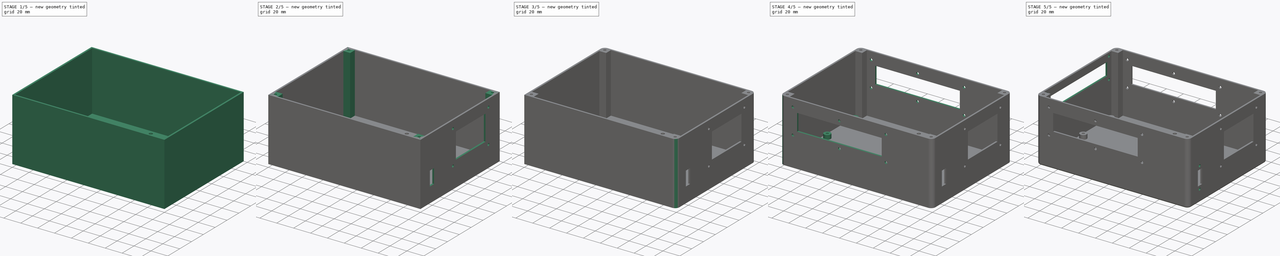
[diagram: build sequence overview — one tinted view per stage of 5, left to right]
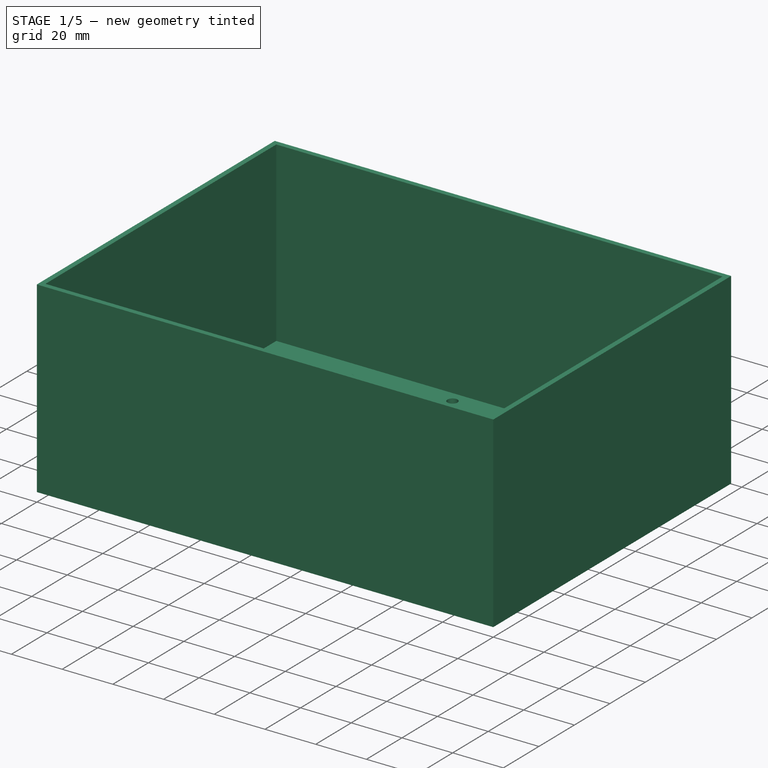
[diagram: stage 1 of 5 — iso view after this stage's code; geometry added in this stage tinted green]
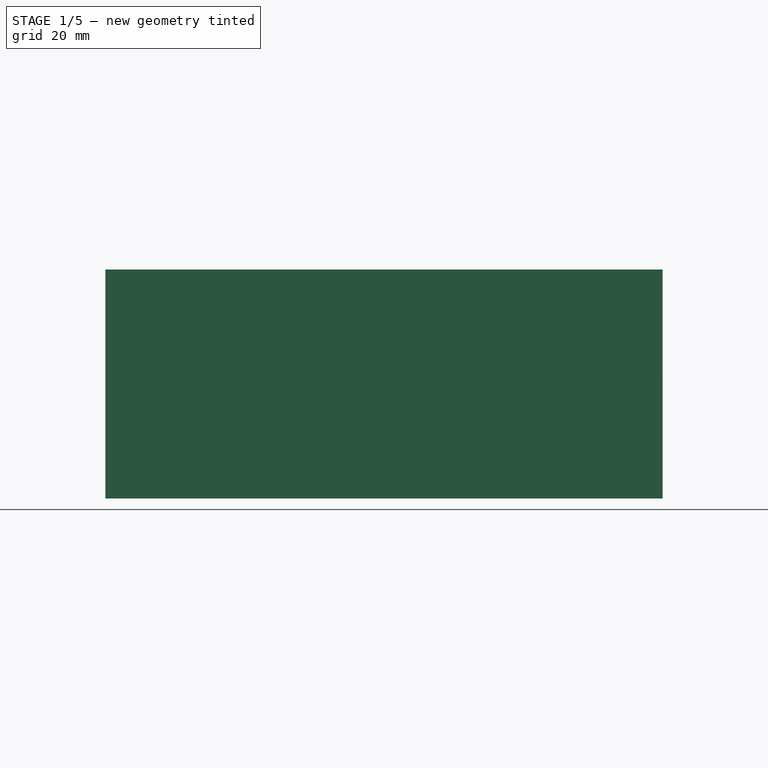
[diagram: stage 1 of 5 — front view after this stage's code; geometry added in this stage tinted green]
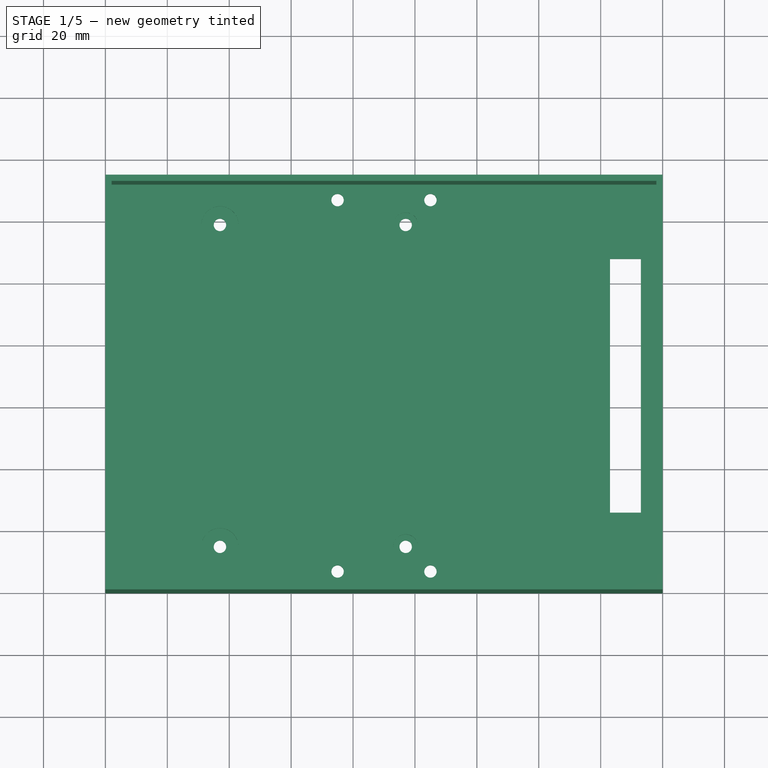
[diagram: stage 1 of 5 — top view after this stage's code; geometry added in this stage tinted green]
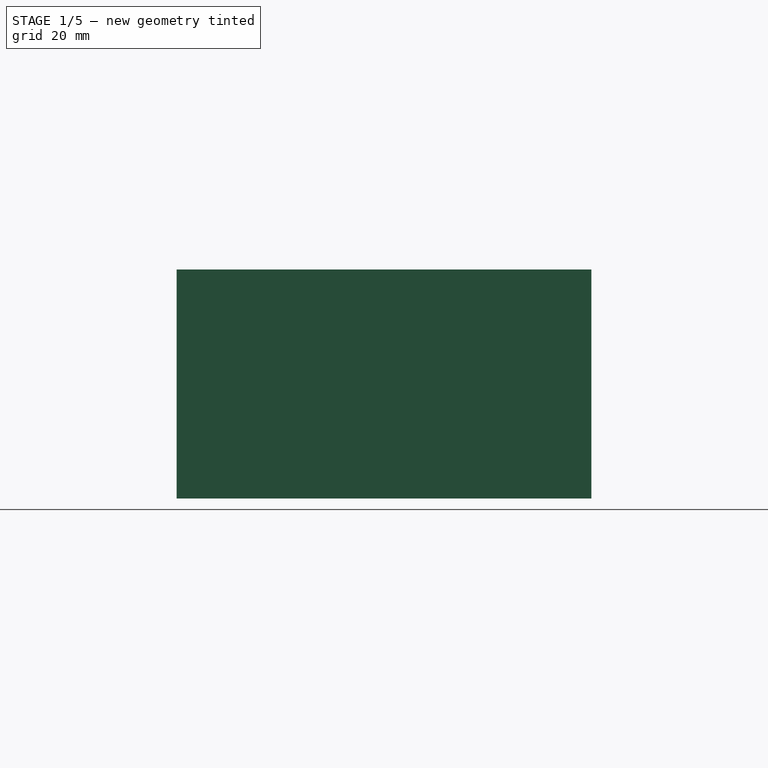
[diagram: stage 1 of 5 — right view after this stage's code; geometry added in this stage tinted green]
FCSTD DOCUMENT  (FreeCAD 0.16R6706 (Git))
Label: iROB-EA_ModuloPrincipal
License: All rights reserved
LicenseURL: http://en.wikipedia.org/wiki/All_rights_reserved
objects: Sketcher::SketchObject×14, PartDesign::Pocket×10, PartDesign::Fillet×5, PartDesign::Pad×4
note: 47 computed .brp shape members not serialized (recipe doc carries the construction recipe); baked Part::Feature solids carry a one-line shape summary decoded from their .brp

FEATURE [Sketcher::SketchObject] Sketch  label="Base"
  sketch-geometry (12):
    g0: LineSegment StartX=0 StartY=134 StartZ=0 EndX=180 EndY=134 EndZ=0
    g1: LineSegment StartX=180 StartY=134 StartZ=0 EndX=180 EndY=0 EndZ=0
    g2: LineSegment StartX=180 StartY=0 StartZ=0 EndX=0 EndY=0 EndZ=0
    g3: LineSegment StartX=0 StartY=0 StartZ=0 EndX=0 EndY=134 EndZ=0
    g4: LineSegment StartX=163 StartY=108 StartZ=0 EndX=173 EndY=108 EndZ=0
    g5: LineSegment StartX=173 StartY=108 StartZ=0 EndX=173 EndY=26 EndZ=0
    g6: LineSegment StartX=173 StartY=26 StartZ=0 EndX=163 EndY=26 EndZ=0
    g7: LineSegment StartX=163 StartY=26 StartZ=0 EndX=163 EndY=108 EndZ=0
    g8: Circle CenterX=37 CenterY=15 CenterZ=0 NormalX=0 NormalY=0 NormalZ=1 Radius=2
    g9: Circle CenterX=37 CenterY=119 CenterZ=0 NormalX=0 NormalY=0 NormalZ=1 Radius=2
    g10: Circle CenterX=97 CenterY=15 CenterZ=0 NormalX=0 NormalY=0 NormalZ=1 Radius=2
    g11: Circle CenterX=97 CenterY=119 CenterZ=0 NormalX=0 NormalY=0 NormalZ=1 Radius=2
  constraints (32):
    c: Coincident(g0,g1)
    c: Coincident(g1,g2)
    c: Coincident(g2,g3)
    c: Coincident(g3,g0)
    c: Horizontal(g0)
    c: Horizontal(g2)
    c: Vertical(g1)
    c: Vertical(g3)
    c: DistanceX(g2,g2) = 180
    c: DistanceY(g1,g1) = 134
    c: Coincident(g-1,g2)
    c: Coincident(g4,g5)
    c: Coincident(g5,g6)
    c: Coincident(g6,g7)
    c: Coincident(g7,g4)
    c: Horizontal(g4)
    c: Horizontal(g6)
    c: Vertical(g5)
    c: Vertical(g7)
    c: DistanceY(g5,g5) = 82
    c: DistanceX(g4,g4) = 10
    c: DistanceY(g4,g0) = 26
    c: DistanceX(g4,g0) = 7
    c: Radius(g8) = 2
    c: DistanceY(g-1,g8) = 15
    c: DistanceX(g8,g-1) = -37
    c: Radius(g9) = 2
    c: DistanceY(g8,g9) = 104
    c: Radius(g10) = 2
    c: DistanceX(g10,g8) = -60
    c: Radius(g11) = 2
    c: DistanceX(g11,g9) = -60
FEATURE [PartDesign::Pad] Pad
  Length = 4
  Length2 = 100
  Sketch = -> Sketch
  Type = 0
FEATURE [Sketcher::SketchObject] Sketch001  label="Laterales"
  Placement = pos=(0,0,4) rot=(0,0,1;0rad)
  Support = -> Pad [Face14]
  sketch-geometry (16):
    g0: LineSegment StartX=0 StartY=2 StartZ=0 EndX=180 EndY=2 EndZ=0
    g1: LineSegment StartX=180 StartY=2 StartZ=0 EndX=180 EndY=0 EndZ=0
    g2: LineSegment StartX=180 StartY=0 StartZ=0 EndX=0 EndY=0 EndZ=0
    g3: LineSegment StartX=0 StartY=0 StartZ=0 EndX=0 EndY=2 EndZ=0
    g4: LineSegment StartX=0 StartY=134 StartZ=0 EndX=180 EndY=134 EndZ=0
    g5: LineSegment StartX=180 StartY=134 StartZ=0 EndX=180 EndY=132 EndZ=0
    g6: LineSegment StartX=180 StartY=132 StartZ=0 EndX=0 EndY=132 EndZ=0
    g7: LineSegment StartX=0 StartY=132 StartZ=0 EndX=0 EndY=134 EndZ=0
    g8: LineSegment StartX=178 StartY=132 StartZ=0 EndX=180 EndY=132 EndZ=0
    g9: LineSegment StartX=180 StartY=132 StartZ=0 EndX=180 EndY=2 EndZ=0
    g10: LineSegment StartX=180 StartY=2 StartZ=0 EndX=178 EndY=2 EndZ=0
    g11: LineSegment StartX=178 StartY=2 StartZ=0 EndX=178 EndY=132 EndZ=0
    g12: LineSegment StartX=0 StartY=132 StartZ=0 EndX=2 EndY=132 EndZ=0
    g13: LineSegment StartX=2 StartY=132 StartZ=0 EndX=2 EndY=2 EndZ=0
    g14: LineSegment StartX=2 StartY=2 StartZ=0 EndX=0 EndY=2 EndZ=0
    g15: LineSegment StartX=0 StartY=2 StartZ=0 EndX=0 EndY=132 EndZ=0
  constraints (45):
    c: Coincident(g0,g1)
    c: Coincident(g1,g2)
    c: Coincident(g2,g3)
    c: Coincident(g3,g0)
    c: Horizontal(g0)
    c: Horizontal(g2)
    c: Vertical(g1)
    c: Vertical(g3)
    c: DistanceY(g1,g1) = 2
    c: DistanceY(g-1,g2) = 0
    c: DistanceX(g0,g0) = 180
    c: DistanceX(g-1,g2) = 0
    c: Coincident(g4,g5)
    c: Coincident(g5,g6)
    c: Coincident(g6,g7)
    c: Coincident(g7,g4)
    c: Horizontal(g4)
    c: Horizontal(g6)
    c: Vertical(g5)
    c: Vertical(g7)
    c: DistanceY(g5,g5) = 2
    c: DistanceX(g4,g4) = 180
    c: DistanceY(g0,g6) = 130
    c: Coincident(g8,g9)
    c: Coincident(g9,g10)
    c: Coincident(g10,g11)
    c: Coincident(g11,g8)
    c: Horizontal(g8)
    c: Horizontal(g10)
    c: Vertical(g9)
    c: Vertical(g11)
    c: DistanceX(g10,g10) = 2
    c: DistanceY(g9,g9) = 130
    c: Coincident(g9,g0)
    c: Coincident(g12,g13)
    c: Coincident(g13,g14)
    c: Coincident(g14,g15)
    c: Coincident(g15,g12)
    c: Horizontal(g12)
    c: Horizontal(g14)
    c: Vertical(g13)
    c: Vertical(g15)
    c: DistanceX(g14,g14) = 2
    c: DistanceY(g13,g13) = 130
    c: Coincident(g14,g0)
FEATURE [PartDesign::Pad] Pad001
  Length = 70
  Length2 = 100
  Sketch = -> Sketch001
  Type = 0
FEATURE [Sketcher::SketchObject] Sketch002  label="Tornillos_Base_Cabeza"
  Placement = pos=(0,0,4) rot=(0,0,1;0rad)
  Support = -> Pad001 [Face10]
  sketch-geometry (4):
    g0: Circle CenterX=37 CenterY=15 CenterZ=0 NormalX=0 NormalY=0 NormalZ=1 Radius=6
    g1: Circle CenterX=97 CenterY=15 CenterZ=0 NormalX=0 NormalY=0 NormalZ=1 Radius=4
    g2: Circle CenterX=37 CenterY=119 CenterZ=0 NormalX=0 NormalY=0 NormalZ=1 Radius=6
    g3: Circle CenterX=97 CenterY=119 CenterZ=0 NormalX=0 NormalY=0 NormalZ=1 Radius=4
  constraints (12):
    c: Radius(g0) = 6
    c: DistanceX(g0,g-1) = -37
    c: DistanceY(g-1,g0) = 15
    c: Radius(g1) = 4
    c: DistanceY(g0,g1) = 0
    c: DistanceX(g1,g0) = -60
    c: Radius(g2) = 6
    c: DistanceX(g2,g0) = 0
    c: DistanceY(g0,g2) = 104
    c: Radius(g3) = 4
    c: DistanceY(g3,g2) = 0
    c: DistanceX(g3,g2) = -60
FEATURE [PartDesign::Pocket] Pocket
  Length = 2
  Sketch = -> Sketch002
  Type = 0
FEATURE [Sketcher::SketchObject] Sketch003  label="Tornillos_Soporte_Bateria"
  Placement = pos=(0,0,4) rot=(0,0,1;0rad)
  Support = -> Pocket [Face15]
  sketch-geometry (4):
    g0: Circle CenterX=105 CenterY=7 CenterZ=0 NormalX=0 NormalY=0 NormalZ=1 Radius=2
    g1: Circle CenterX=75 CenterY=7 CenterZ=0 NormalX=0 NormalY=0 NormalZ=1 Radius=2
    g2: Circle CenterX=75 CenterY=127 CenterZ=0 NormalX=0 NormalY=0 NormalZ=1 Radius=2
    g3: Circle CenterX=105 CenterY=127 CenterZ=0 NormalX=0 NormalY=0 NormalZ=1 Radius=2
  constraints (12):
    c: Radius(g0) = 2
    c: DistanceX(g0,g-1) = -105
    c: DistanceY(g-1,g0) = 7
    c: Radius(g1) = 2
    c: DistanceY(g0,g1) = 0
    c: DistanceX(g1,g0) = 30
    c: Radius(g2) = 2
    c: DistanceX(g2,g1) = 0
    c: DistanceY(g1,g2) = 120
    c: Radius(g3) = 2
    c: DistanceY(g2,g3) = 0
    c: DistanceX(g3,g2) = -30
FEATURE [PartDesign::Pocket] Pocket001
  Length = 4
  Sketch = -> Sketch003
  Type = 0
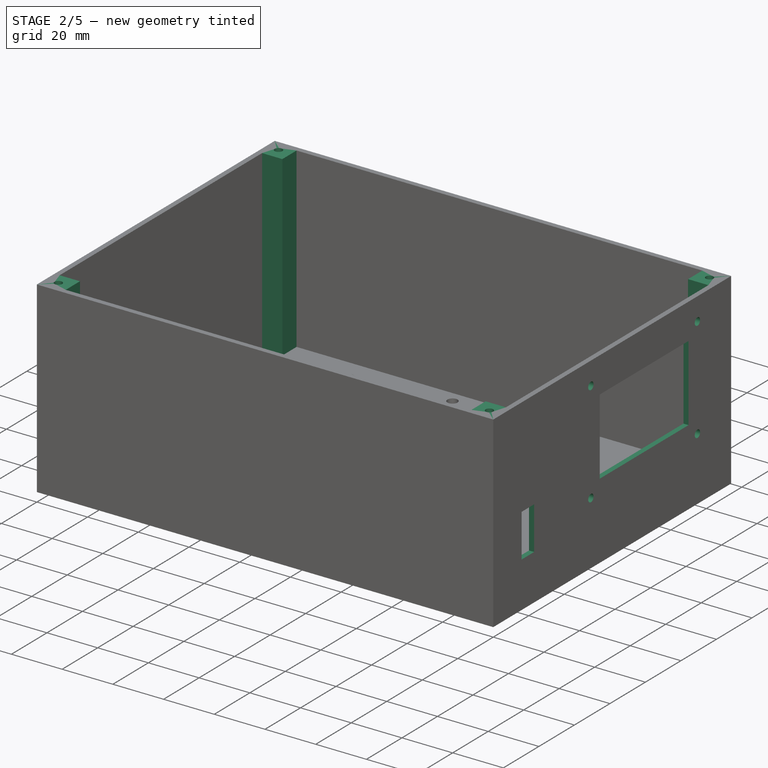
[diagram: stage 2 of 5 — iso view after this stage's code; geometry added in this stage tinted green]
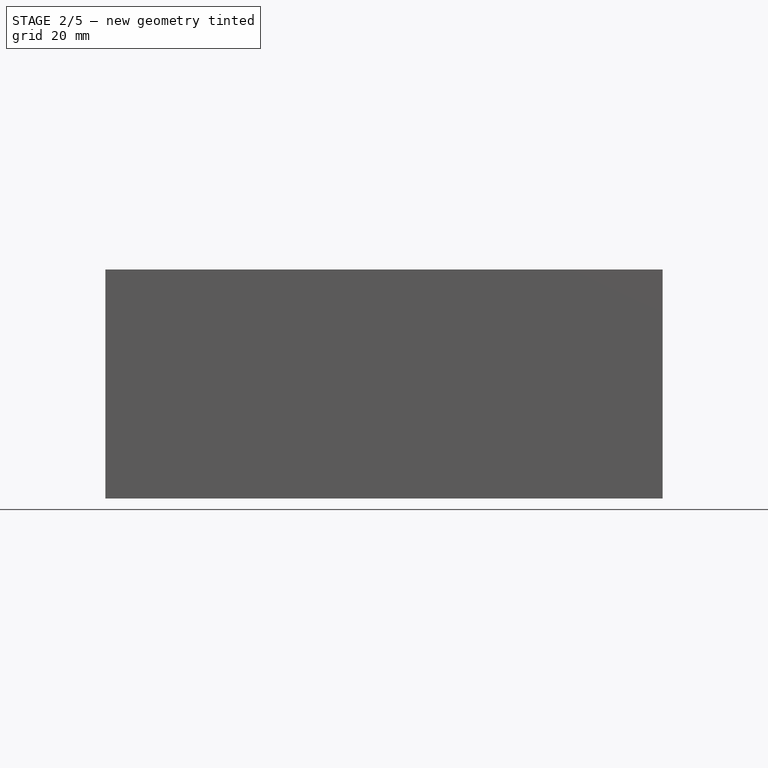
[diagram: stage 2 of 5 — front view after this stage's code; geometry added in this stage tinted green]
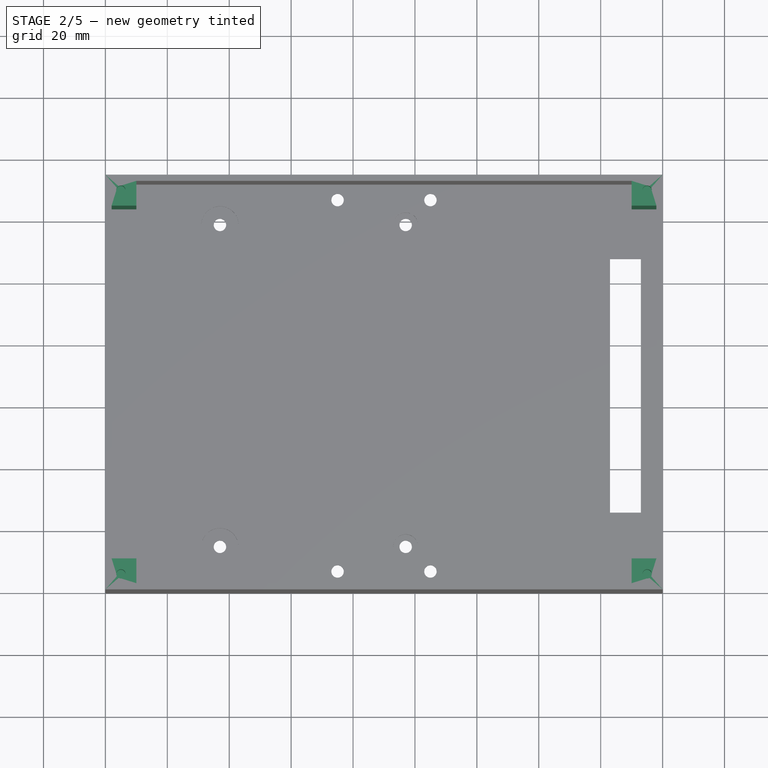
[diagram: stage 2 of 5 — top view after this stage's code; geometry added in this stage tinted green]
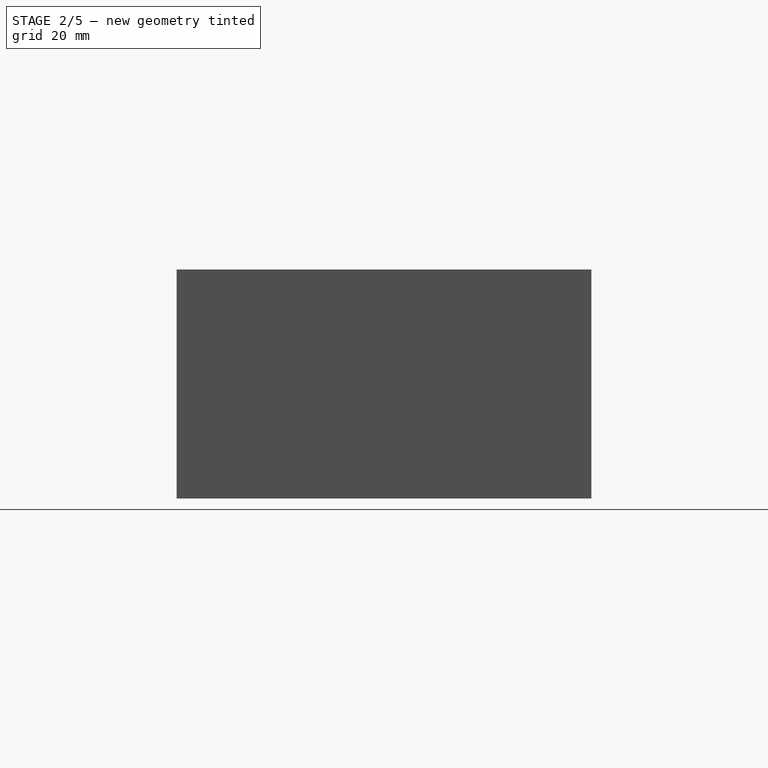
[diagram: stage 2 of 5 — right view after this stage's code; geometry added in this stage tinted green]
FEATURE [Sketcher::SketchObject] Sketch004  label="Tornillos_Soporte_Bateria_Cabeza"
  Placement = pos=(0,0,0) rot=(1,0,0;3.14159rad)
  Support = -> Pocket001 [Face1]
  sketch-geometry (4):
    g0: Circle CenterX=105 CenterY=-7 CenterZ=0 NormalX=0 NormalY=0 NormalZ=1 Radius=4
    g1: Circle CenterX=75 CenterY=-7 CenterZ=0 NormalX=0 NormalY=0 NormalZ=1 Radius=4
    g2: Circle CenterX=75 CenterY=-127 CenterZ=0 NormalX=0 NormalY=0 NormalZ=1 Radius=4
    g3: Circle CenterX=105 CenterY=-127 CenterZ=0 NormalX=0 NormalY=0 NormalZ=1 Radius=4
  constraints (12):
    c: Radius(g0) = 4
    c: DistanceX(g0) = 105
    c: DistanceY(g0,g-1) = 7
    c: Radius(g1) = 4
    c: DistanceY(g1,g0) = 0
    c: DistanceX(g1,g0) = 30
    c: Radius(g2) = 4
    c: DistanceX(g2,g1) = 0
    c: DistanceY(g2,g1) = 120
    c: Radius(g3) = 4
    c: DistanceY(g2,g3) = 0
    c: DistanceX(g3,g2) = -30
FEATURE [PartDesign::Pocket] Pocket002
  Length = 2
  Sketch = -> Sketch004
  Type = 0
FEATURE [Sketcher::SketchObject] Sketch005  label="Mecanizado_Trasera"
  Placement = pos=(180,0,0) rot=(0.57735,0.57735,0.57735;2.0944rad)
  Support = -> Pocket002 [Face4]
  sketch-geometry (12):
    g0: LineSegment StartX=16 StartY=35 StartZ=0 EndX=23 EndY=35 EndZ=0
    g1: LineSegment StartX=23 StartY=35 StartZ=0 EndX=23 EndY=18 EndZ=0
    g2: LineSegment StartX=23 StartY=18 StartZ=0 EndX=16 EndY=18 EndZ=0
    g3: LineSegment StartX=16 StartY=18 StartZ=0 EndX=16 EndY=35 EndZ=0
    g4: LineSegment StartX=60 StartY=60 StartZ=0 EndX=110 EndY=60 EndZ=0
    g5: LineSegment StartX=110 StartY=60 StartZ=0 EndX=110 EndY=30 EndZ=0
    g6: LineSegment StartX=110 StartY=30 StartZ=0 EndX=60 EndY=30 EndZ=0
    g7: LineSegment StartX=60 StartY=30 StartZ=0 EndX=60 EndY=60 EndZ=0
    g8: Circle CenterX=55 CenterY=65 CenterZ=0 NormalX=0 NormalY=0 NormalZ=1 Radius=1.5
    g9: Circle CenterX=115 CenterY=65 CenterZ=0 NormalX=0 NormalY=0 NormalZ=1 Radius=1.5
    g10: Circle CenterX=55 CenterY=25 CenterZ=0 NormalX=0 NormalY=0 NormalZ=1 Radius=1.5
    g11: Circle CenterX=115 CenterY=25 CenterZ=0 NormalX=0 NormalY=0 NormalZ=1 Radius=1.5
  constraints (36):
    c: Coincident(g0,g1)
    c: Coincident(g1,g2)
    c: Coincident(g2,g3)
    c: Coincident(g3,g0)
    c: Horizontal(g0)
    c: Horizontal(g2)
    c: Vertical(g1)
    c: Vertical(g3)
    c: DistanceY(g1,g1) = 17
    c: DistanceX(g0,g0) = 7
    c: DistanceY(g-1,g2) = 18
    c: DistanceX(g2,g-1) = -16
    c: Coincident(g4,g5)
    c: Coincident(g5,g6)
    c: Coincident(g6,g7)
    c: Coincident(g7,g4)
    c: Horizontal(g4)
    c: Horizontal(g6)
    c: Vertical(g5)
    c: Vertical(g7)
    c: DistanceX(g4,g4) = 50
    c: DistanceY(g7,g7) = 30
    c: DistanceY(g-1,g6) = 30
    c: DistanceX(g6,g-1) = -60
    c: Radius(g8) = 1.5
    c: DistanceY(g-1,g8) = 65
    c: DistanceX(g8,g-1) = -55
    c: Radius(g9) = 1.5
    c: DistanceY(g8,g9) = 0
    c: DistanceX(g9,g8) = -60
    c: Radius(g10) = 1.5
    c: DistanceX(g10,g8) = 0
    c: DistanceY(g8,g10) = -40
    c: Radius(g11) = 1.5
    c: DistanceX(g11,g10) = -60
    c: DistanceY(g10,g11) = 0
FEATURE [PartDesign::Pocket] Pocket003
  Length = 2
  Sketch = -> Sketch005
  Type = 0
FEATURE [Sketcher::SketchObject] Sketch006  label="Columnas_Tapa"
  Placement = pos=(0,0,4) rot=(0,0,1;0rad)
  Support = -> Pocket003 [Face37]
  sketch-geometry (16):
    g0: LineSegment StartX=0 StartY=10 StartZ=0 EndX=10 EndY=10 EndZ=0
    g1: LineSegment StartX=10 StartY=10 StartZ=0 EndX=10 EndY=0 EndZ=0
    g2: LineSegment StartX=10 StartY=0 StartZ=0 EndX=0 EndY=0 EndZ=0
    g3: LineSegment StartX=0 StartY=0 StartZ=0 EndX=0 EndY=10 EndZ=0
    g4: LineSegment StartX=170 StartY=10 StartZ=0 EndX=180 EndY=10 EndZ=0
    g5: LineSegment StartX=180 StartY=10 StartZ=0 EndX=180 EndY=0 EndZ=0
    g6: LineSegment StartX=180 StartY=0 StartZ=0 EndX=170 EndY=0 EndZ=0
    g7: LineSegment StartX=170 StartY=0 StartZ=0 EndX=170 EndY=10 EndZ=0
    g8: LineSegment StartX=0 StartY=134 StartZ=0 EndX=10 EndY=134 EndZ=0
    g9: LineSegment StartX=10 StartY=134 StartZ=0 EndX=10 EndY=124 EndZ=0
    g10: LineSegment StartX=10 StartY=124 StartZ=0 EndX=0 EndY=124 EndZ=0
    g11: LineSegment StartX=0 StartY=124 StartZ=0 EndX=0 EndY=134 EndZ=0
    g12: LineSegment StartX=170 StartY=134 StartZ=0 EndX=180 EndY=134 EndZ=0
    g13: LineSegment StartX=180 StartY=134 StartZ=0 EndX=180 EndY=124 EndZ=0
    g14: LineSegment StartX=180 StartY=124 StartZ=0 EndX=170 EndY=124 EndZ=0
    g15: LineSegment StartX=170 StartY=124 StartZ=0 EndX=170 EndY=134 EndZ=0
  constraints (47):
    c: Coincident(g0,g1)
    c: Coincident(g1,g2)
    c: Coincident(g2,g3)
    c: Coincident(g3,g0)
    c: Horizontal(g0)
    c: Horizontal(g2)
    c: Vertical(g1)
    c: Vertical(g3)
    c: DistanceX(g0,g0) = 10
    c: DistanceY(g1,g1) = 10
    c: Coincident(g2,g-1)
    c: Coincident(g4,g5)
    c: Coincident(g5,g6)
    c: Coincident(g6,g7)
    c: Coincident(g7,g4)
    c: Horizontal(g4)
    c: Horizontal(g6)
    c: Vertical(g5)
    c: Vertical(g7)
    c: DistanceX(g4,g4) = 10
    c: DistanceY(g5,g5) = 10
    c: DistanceY(g6,g-1) = 0
    c: DistanceX(g-1,g6) = 170
    c: Coincident(g8,g9)
    c: Coincident(g9,g10)
    c: Coincident(g10,g11)
    c: Coincident(g11,g8)
    c: Horizontal(g8)
    c: Horizontal(g10)
    c: Vertical(g9)
    c: Vertical(g11)
    c: DistanceX(g8,g8) = 10
    c: DistanceY(g11,g11) = 10
    c: DistanceX(g10,g-1) = 0
    c: DistanceY(g-1,g10) = 124
    c: Coincident(g12,g13)
    c: Coincident(g13,g14)
    c: Coincident(g14,g15)
    c: Coincident(g15,g12)
    c: Horizontal(g12)
    c: Horizontal(g14)
    c: Vertical(g13)
    c: Vertical(g15)
    c: DistanceX(g12,g12) = 10
    c: DistanceY(g13,g13) = 10
    c: DistanceY(g14,g10) = 0
    c: DistanceX(g10,g14) = 170
FEATURE [PartDesign::Pad] Pad002
  Length = 70
  Length2 = 100
  Sketch = -> Sketch006
  Type = 0
FEATURE [Sketcher::SketchObject] Sketch007  label="Columnas_Tapa_Tornillos"
  Placement = pos=(0,0,74) rot=(0,0,1;0rad)
  Support = -> Pad002 [Face59]
  sketch-geometry (4):
    g0: Circle CenterX=5 CenterY=5 CenterZ=0 NormalX=0 NormalY=0 NormalZ=1 Radius=1.5
    g1: Circle CenterX=5 CenterY=129 CenterZ=0 NormalX=0 NormalY=0 NormalZ=1 Radius=1.5
    g2: Circle CenterX=175 CenterY=129 CenterZ=0 NormalX=0 NormalY=0 NormalZ=1 Radius=1.5
    g3: Circle CenterX=175 CenterY=5 CenterZ=0 NormalX=0 NormalY=0 NormalZ=1 Radius=1.5
  constraints (12):
    c: Radius(g0) = 1.5
    c: DistanceX(g0,g-1) = -5
    c: DistanceY(g-1,g0) = 5
    c: Radius(g1) = 1.5
    c: DistanceX(g1,g-1) = -5
    c: DistanceY(g-1,g1) = 129
    c: Radius(g2) = 1.5
    c: DistanceY(g2,g1) = 0
    c: DistanceX(g2,g1) = -170
    c: Radius(g3) = 1.5
    c: DistanceY(g0,g3) = 0
    c: DistanceX(g3,g0) = -170
FEATURE [PartDesign::Pocket] Pocket004
  Length = 10
  Sketch = -> Sketch007
  Type = 0
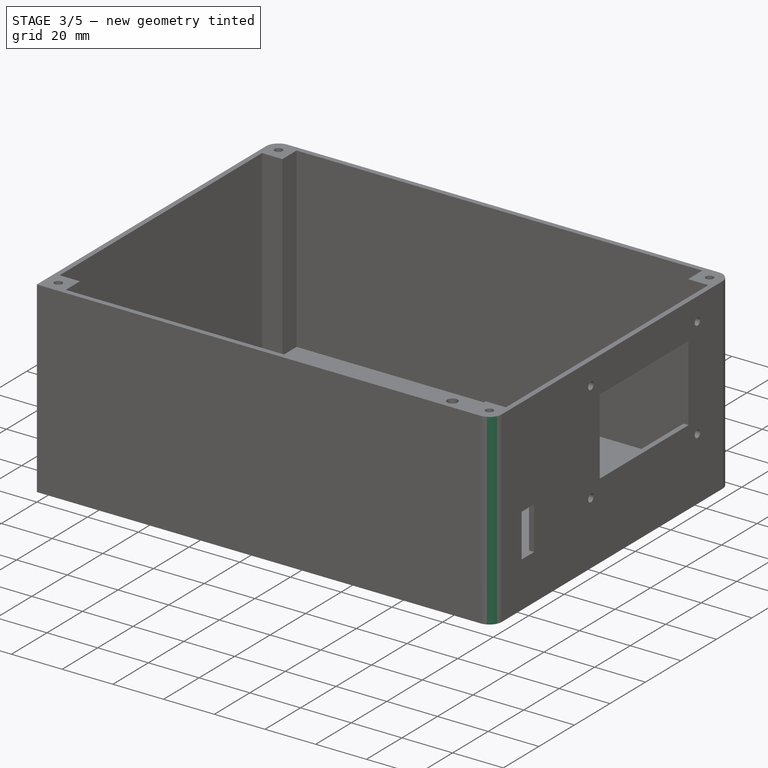
[diagram: stage 3 of 5 — iso view after this stage's code; geometry added in this stage tinted green]
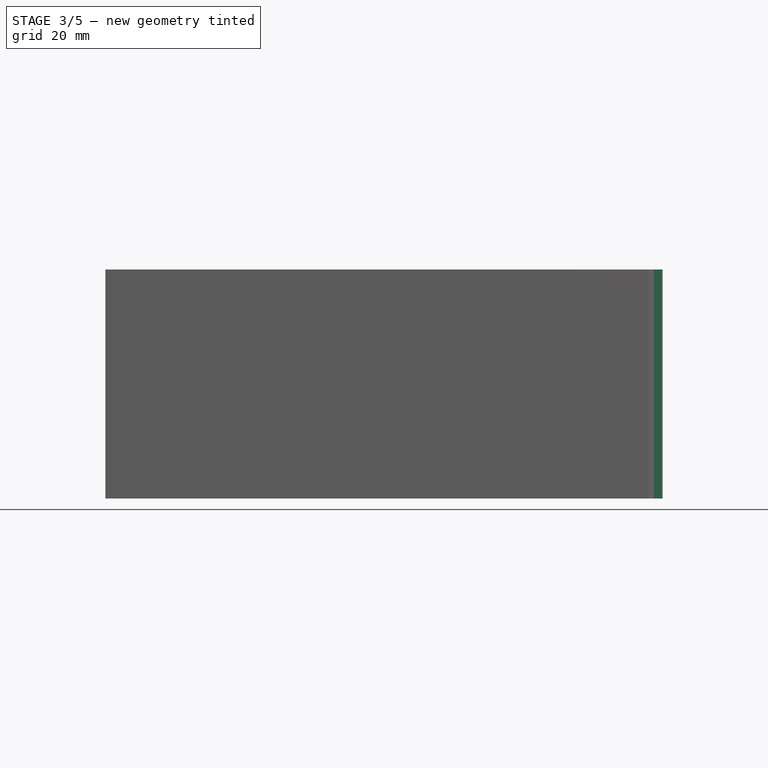
[diagram: stage 3 of 5 — front view after this stage's code; geometry added in this stage tinted green]
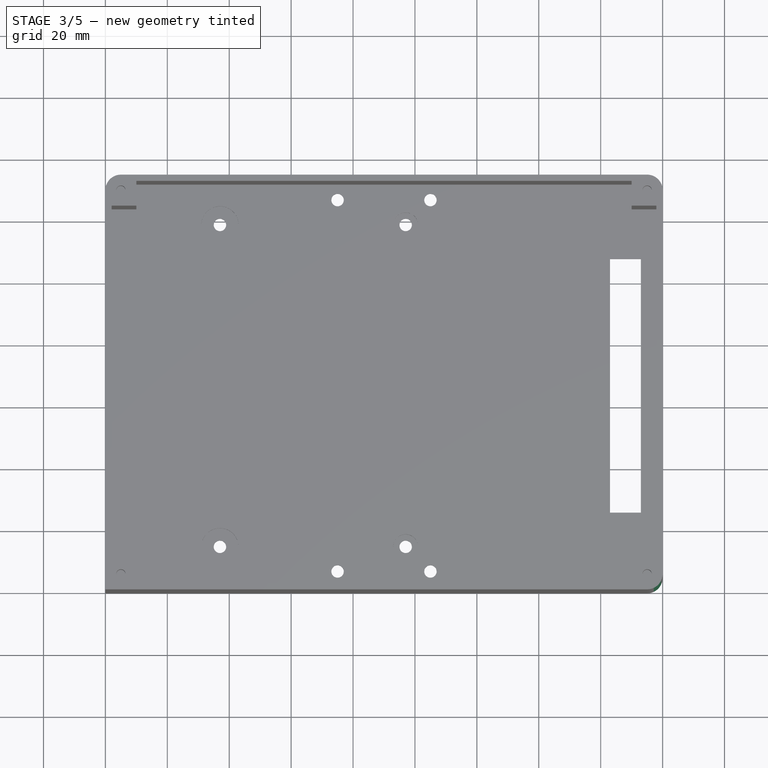
[diagram: stage 3 of 5 — top view after this stage's code; geometry added in this stage tinted green]
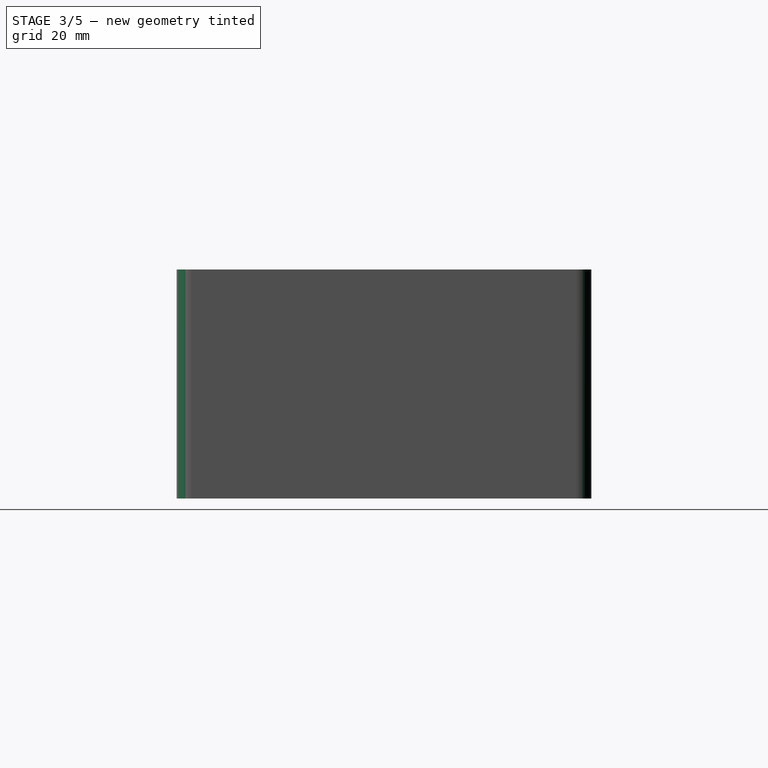
[diagram: stage 3 of 5 — right view after this stage's code; geometry added in this stage tinted green]
FEATURE [PartDesign::Fillet] Fillet  label="Borde_Exterior_0"
  Base = -> Pocket004 [Edge23]
  Radius = 5
FEATURE [PartDesign::Fillet] Fillet001  label="Borde_Exterior_1"
  Base = -> Fillet [Edge20]
  Radius = 5
FEATURE [PartDesign::Fillet] Fillet002  label="Borde_Exterior_2"
  Base = -> Fillet001 [Edge39]
  Radius = 5
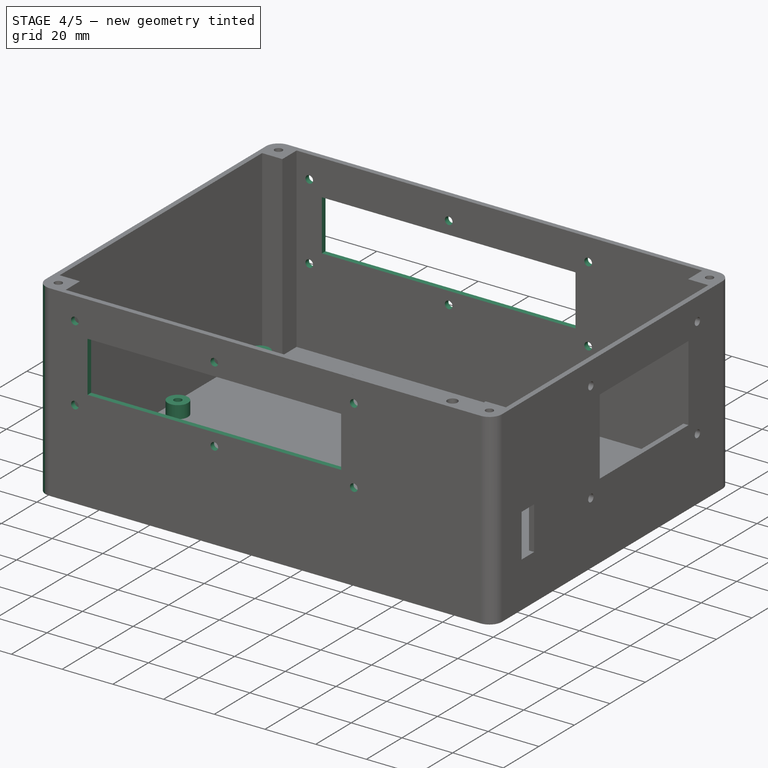
[diagram: stage 4 of 5 — iso view after this stage's code; geometry added in this stage tinted green]
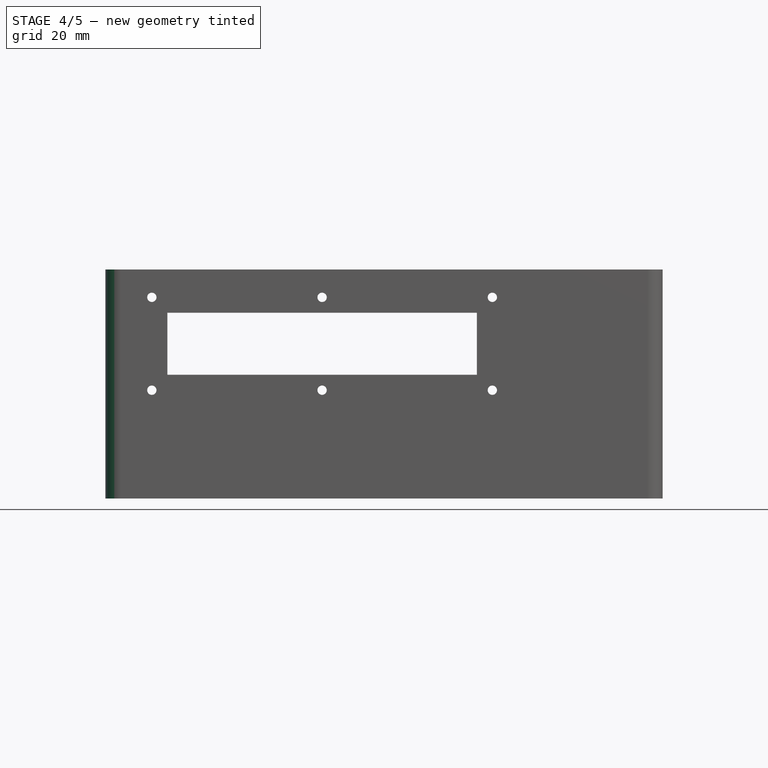
[diagram: stage 4 of 5 — front view after this stage's code; geometry added in this stage tinted green]
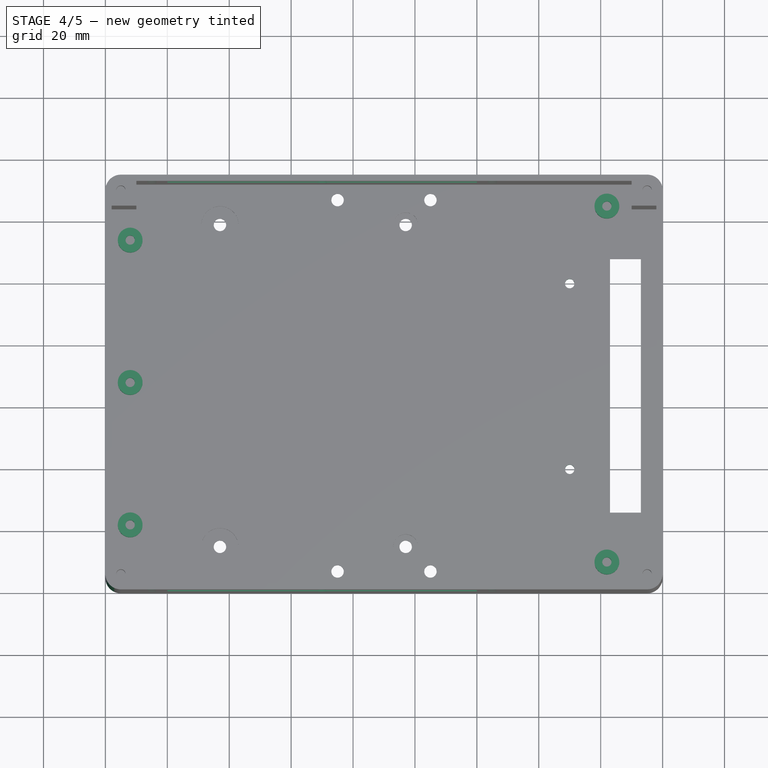
[diagram: stage 4 of 5 — top view after this stage's code; geometry added in this stage tinted green]
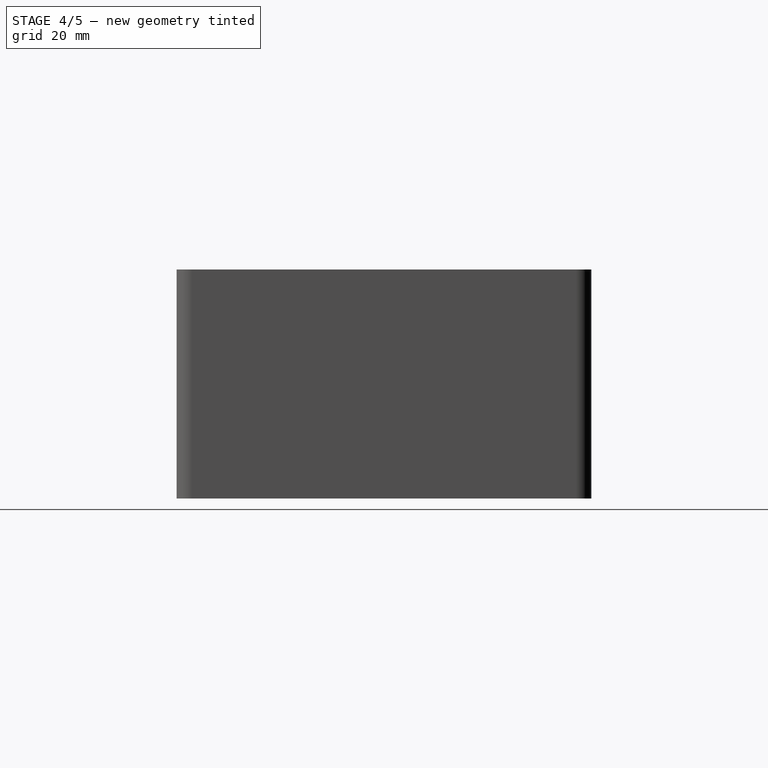
[diagram: stage 4 of 5 — right view after this stage's code; geometry added in this stage tinted green]
FEATURE [PartDesign::Fillet] Fillet003  label="Borde_Exterior_3"
  Base = -> Fillet002 [Edge28]
  Radius = 5
FEATURE [Sketcher::SketchObject] Sketch008  label="Lateralaes_Mecanizados"
  Placement = pos=(0,0,0) rot=(1,0,0;1.5708rad)
  Support = -> Fillet003 [Face5]
  sketch-geometry (10):
    g0: LineSegment StartX=20 StartY=60 StartZ=0 EndX=120 EndY=60 EndZ=0
    g1: LineSegment StartX=120 StartY=60 StartZ=0 EndX=120 EndY=40 EndZ=0
    g2: LineSegment StartX=120 StartY=40 StartZ=0 EndX=20 EndY=40 EndZ=0
    g3: LineSegment StartX=20 StartY=40 StartZ=0 EndX=20 EndY=60 EndZ=0
    g4: Circle CenterX=15 CenterY=35 CenterZ=0 NormalX=0 NormalY=0 NormalZ=1 Radius=1.5
    g5: Circle CenterX=15 CenterY=65 CenterZ=0 NormalX=0 NormalY=0 NormalZ=1 Radius=1.5
    g6: Circle CenterX=125 CenterY=35 CenterZ=0 NormalX=0 NormalY=0 NormalZ=1 Radius=1.5
    g7: Circle CenterX=125 CenterY=65 CenterZ=0 NormalX=0 NormalY=0 NormalZ=1 Radius=1.5
    g8: Circle CenterX=70 CenterY=65 CenterZ=0 NormalX=0 NormalY=0 NormalZ=1 Radius=1.5
    g9: Circle CenterX=70 CenterY=35 CenterZ=0 NormalX=0 NormalY=0 NormalZ=1 Radius=1.5
  constraints (30):
    c: Coincident(g0,g1)
    c: Coincident(g1,g2)
    c: Coincident(g2,g3)
    c: Coincident(g3,g0)
    c: Horizontal(g0)
    c: Horizontal(g2)
    c: Vertical(g1)
    c: Vertical(g3)
    c: DistanceX(g0,g0) = 100
    c: DistanceY(g1,g1) = 20
    c: DistanceX(g2,g-1) = -20
    c: DistanceY(g-1,g2) = 40
    c: Radius(g4) = 1.5
    c: DistanceY(g-1,g4) = 35
    c: DistanceX(g4,g-1) = -15
    c: Radius(g5) = 1.5
    c: DistanceX(g5,g4) = 0
    c: DistanceY(g4,g5) = 30
    c: Radius(g6) = 1.5
    c: DistanceX(g6,g4) = -110
    c: DistanceY(g4,g6) = 0
    c: Radius(g7) = 1.5
    c: DistanceX(g7,g6) = 0
    c: DistanceY(g5,g7) = 0
    c: Radius(g8) = 1.5
    c: DistanceX(g8,g5) = -55
    c: DistanceY(g5,g8) = 0
    c: Radius(g9) = 1.5
    c: DistanceX(g9,g8) = 0
    c: DistanceY(g4,g9) = 0
FEATURE [PartDesign::Pocket] Pocket005
  Length = 150
  Sketch = -> Sketch008
  Type = 0
FEATURE [Sketcher::SketchObject] Sketch009  label="Soportes_Base"
  Placement = pos=(0,0,4) rot=(0,0,1;0rad)
  Support = -> Pocket005 [Face61]
  sketch-geometry (10):
    g0: Circle CenterX=8 CenterY=114 CenterZ=0 NormalX=0 NormalY=0 NormalZ=1 Radius=1.5
    g1: Circle CenterX=8 CenterY=114 CenterZ=0 NormalX=0 NormalY=0 NormalZ=1 Radius=4
    g2: Circle CenterX=8 CenterY=68 CenterZ=0 NormalX=0 NormalY=0 NormalZ=1 Radius=1.5
    g3: Circle CenterX=8 CenterY=68 CenterZ=0 NormalX=0 NormalY=0 NormalZ=1 Radius=4
    g4: Circle CenterX=8 CenterY=22 CenterZ=0 NormalX=0 NormalY=0 NormalZ=1 Radius=1.5
    g5: Circle CenterX=8 CenterY=22 CenterZ=0 NormalX=0 NormalY=0 NormalZ=1 Radius=4
    g6: Circle CenterX=162 CenterY=125 CenterZ=0 NormalX=0 NormalY=0 NormalZ=1 Radius=1.5
    g7: Circle CenterX=162 CenterY=125 CenterZ=0 NormalX=0 NormalY=0 NormalZ=1 Radius=4
    g8: Circle CenterX=162 CenterY=10 CenterZ=0 NormalX=0 NormalY=0 NormalZ=1 Radius=1.5
    g9: Circle CenterX=162 CenterY=10 CenterZ=0 NormalX=0 NormalY=0 NormalZ=1 Radius=4
  constraints (25):
    c: Radius(g0) = 1.5
    c: Radius(g1) = 4
    c: Coincident(g0,g1)
    c: Radius(g2) = 1.5
    c: Radius(g3) = 4
    c: Coincident(g3,g2)
    c: Radius(g4) = 1.5
    c: Radius(g5) = 4
    c: Coincident(g5,g4)
    c: DistanceX(g2,g0) = 0
    c: DistanceX(g2,g4) = 0
    c: DistanceY(g4,g2) = 46
    c: DistanceY(g-1,g4) = 22
    c: DistanceY(g2,g0) = 46
    c: DistanceX(g4,g-1) = -8
    c: Radius(g6) = 1.5
    c: Radius(g7) = 4
    c: Coincident(g7,g6)
    c: Radius(g8) = 1.5
    c: Radius(g9) = 4
    c: Coincident(g8,g9)
    c: DistanceX(g6,g8) = 0
    c: DistanceY(g-1,g8) = 10
    c: DistanceY(g8,g6) = 115
    c: DistanceX(g8,g-1) = -162
FEATURE [PartDesign::Pad] Pad003
  Length = 5
  Length2 = 100
  Sketch = -> Sketch009
  Type = 0
FEATURE [Sketcher::SketchObject] Sketch010  label="Tornillos_Ranura_Cables"
  Placement = pos=(0,0,4) rot=(0,0,1;0rad)
  Support = -> Pad003 [Face61]
  sketch-geometry (2):
    g0: Circle CenterX=150 CenterY=100 CenterZ=0 NormalX=0 NormalY=0 NormalZ=1 Radius=1.5
    g1: Circle CenterX=150 CenterY=40 CenterZ=0 NormalX=0 NormalY=0 NormalZ=1 Radius=1.5
  constraints (6):
    c: Radius(g0) = 1.5
    c: Radius(g1) = 1.5
    c: DistanceX(g0,g1) = 0
    c: DistanceY(g1,g0) = 60
    c: DistanceX(g1,g-1) = -150
    c: DistanceY(g-1,g1) = 40
FEATURE [PartDesign::Pocket] Pocket006
  Length = 4
  Sketch = -> Sketch010
  Type = 0
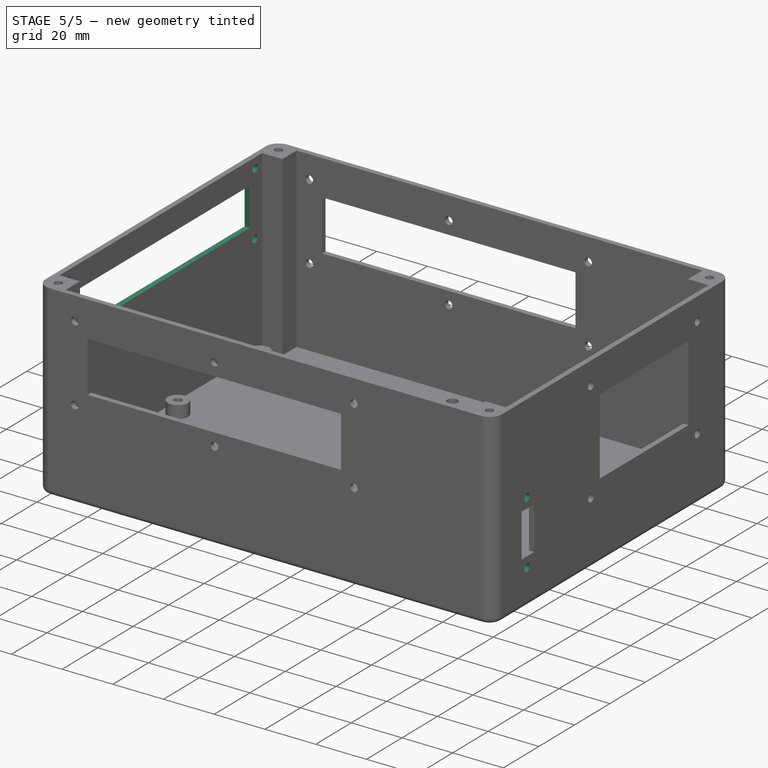
[diagram: stage 5 of 5 — iso view after this stage's code; geometry added in this stage tinted green]
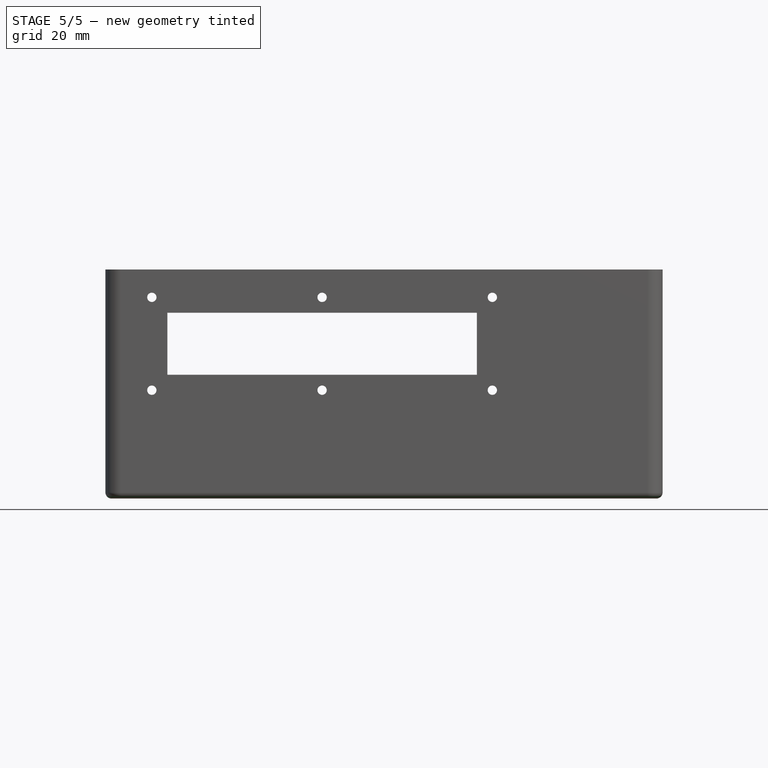
[diagram: stage 5 of 5 — front view after this stage's code; geometry added in this stage tinted green]
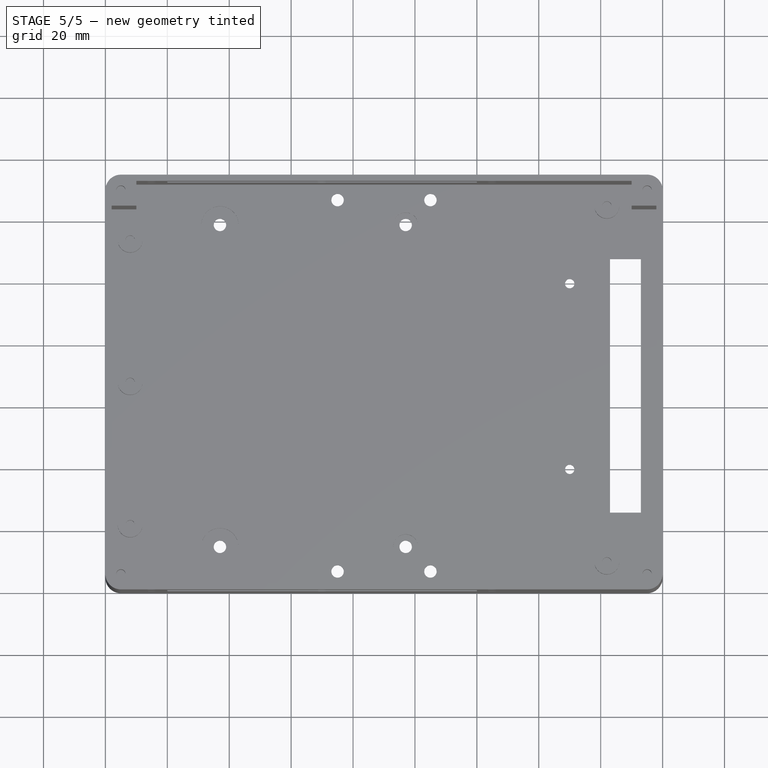
[diagram: stage 5 of 5 — top view after this stage's code; geometry added in this stage tinted green]
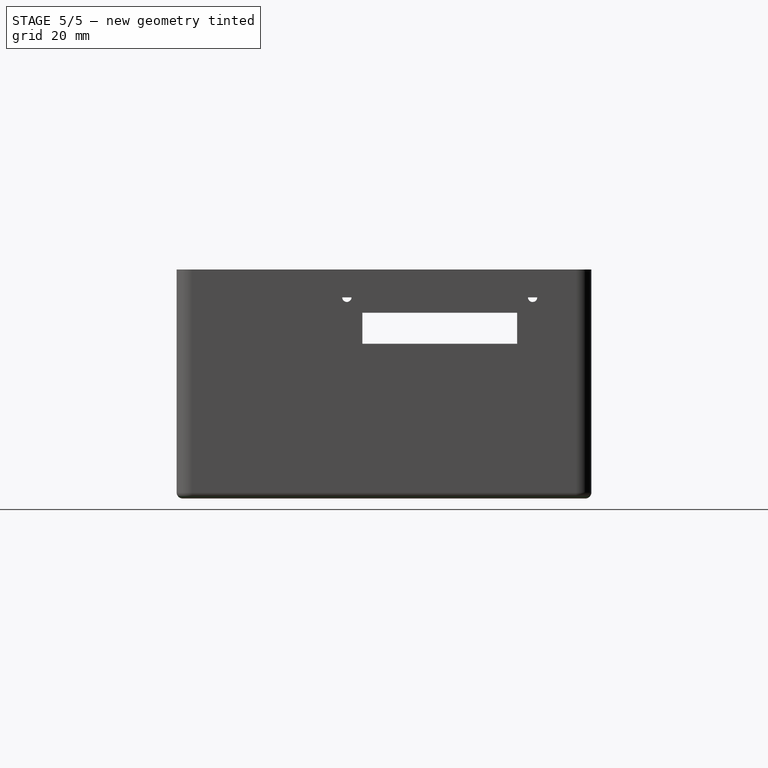
[diagram: stage 5 of 5 — right view after this stage's code; geometry added in this stage tinted green]
FEATURE [Sketcher::SketchObject] Sketch011  label="Tornillos_Ranura_Cabeza"
  Placement = pos=(0,0,0) rot=(1,0,0;3.14159rad)
  Support = -> Pocket006 [Face1]
  sketch-geometry (2):
    g0: Circle CenterX=150 CenterY=-40 CenterZ=0 NormalX=0 NormalY=0 NormalZ=1 Radius=4
    g1: Circle CenterX=150 CenterY=-100 CenterZ=0 NormalX=0 NormalY=0 NormalZ=1 Radius=4
  constraints (6):
    c: Radius(g0) = 4
    c: DistanceX(g-1,g0) = 150
    c: DistanceY(g-1,g0) = -40
    c: Radius(g1) = 4
    c: DistanceX(g0,g1) = 0
    c: DistanceY(g1,g0) = 60
FEATURE [PartDesign::Pocket] Pocket007
  Length = 2
  Sketch = -> Sketch011
  Type = 0
FEATURE [Sketcher::SketchObject] Sketch012  label="Tornillos_HDMI"
  Placement = pos=(180,0,0) rot=(0.57735,0.57735,0.57735;2.0944rad)
  Support = -> Pocket007 [Face9]
  sketch-geometry (2):
    g0: Circle CenterX=19 CenterY=39 CenterZ=0 NormalX=0 NormalY=0 NormalZ=1 Radius=1.5
    g1: Circle CenterX=19 CenterY=14 CenterZ=0 NormalX=0 NormalY=0 NormalZ=1 Radius=1.5
  constraints (6):
    c: Radius(g0) = 1.5
    c: Radius(g1) = 1.5
    c: DistanceX(g1,g0) = 0
    c: DistanceY(g1,g0) = 25
    c: DistanceX(g1,g-1) = -19
    c: DistanceY(g-1,g1) = 14
FEATURE [PartDesign::Pocket] Pocket008
  Length = 2
  Sketch = -> Sketch012
  Type = 0
FEATURE [PartDesign::Fillet] Fillet004  label="Bordes_Inferiores"
  Base = -> Pocket008 [Edge8]
  Radius = 2
FEATURE [Sketcher::SketchObject] Sketch013  label="Mecanizado_Delantera"
  Placement = pos=(0,0,0) rot=(0.57735,-0.57735,-0.57735;2.0944rad)
  Support = -> Fillet004 [Face31]
  sketch-geometry (8):
    g0: LineSegment StartX=-117 StartY=65 StartZ=0 EndX=-17 EndY=65 EndZ=0
    g1: LineSegment StartX=-17 StartY=65 StartZ=0 EndX=-17 EndY=50 EndZ=0
    g2: LineSegment StartX=-17 StartY=50 StartZ=0 EndX=-117 EndY=50 EndZ=0
    g3: LineSegment StartX=-117 StartY=50 StartZ=0 EndX=-117 EndY=65 EndZ=0
    g4: Circle CenterX=-120 CenterY=45 CenterZ=0 NormalX=0 NormalY=0 NormalZ=1 Radius=1.5
    g5: Circle CenterX=-15 CenterY=45 CenterZ=0 NormalX=0 NormalY=0 NormalZ=1 Radius=1.5
    g6: Circle CenterX=-120 CenterY=70 CenterZ=0 NormalX=0 NormalY=0 NormalZ=1 Radius=1.5
    g7: Circle CenterX=-15 CenterY=70 CenterZ=0 NormalX=0 NormalY=0 NormalZ=1 Radius=1.5
  constraints (24):
    c: Coincident(g0,g1)
    c: Coincident(g1,g2)
    c: Coincident(g2,g3)
    c: Coincident(g3,g0)
    c: Horizontal(g0)
    c: Horizontal(g2)
    c: Vertical(g1)
    c: Vertical(g3)
    c: DistanceX(g0,g0) = 100
    c: DistanceY(g3,g3) = 15
    c: DistanceY(g-1,g1) = 50
    c: DistanceX(g1,g-1) = 17
    c: Radius(g4) = 1.5
    c: Radius(g5) = 1.5
    c: DistanceY(g5,g4) = 0
    c: DistanceX(g4,g5) = 105
    c: DistanceY(g-1,g4) = 45
    c: DistanceX(g5,g-1) = 15
    c: Radius(g6) = 1.5
    c: Radius(g7) = 1.5
    c: DistanceY(g7,g6) = 0
    c: DistanceX(g6,g4) = 0
    c: DistanceX(g7,g5) = 0
    c: DistanceY(g4,g6) = 25
FEATURE [PartDesign::Pocket] Pocket009
  Length = 2
  Sketch = -> Sketch013
  Type = 0
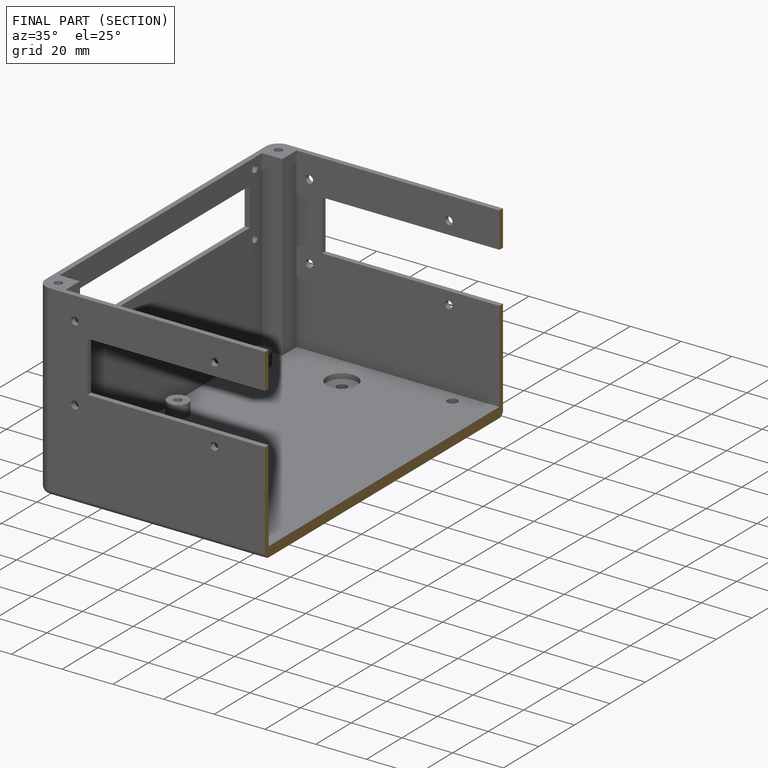
[diagram: finished part — half-section view (interior)]
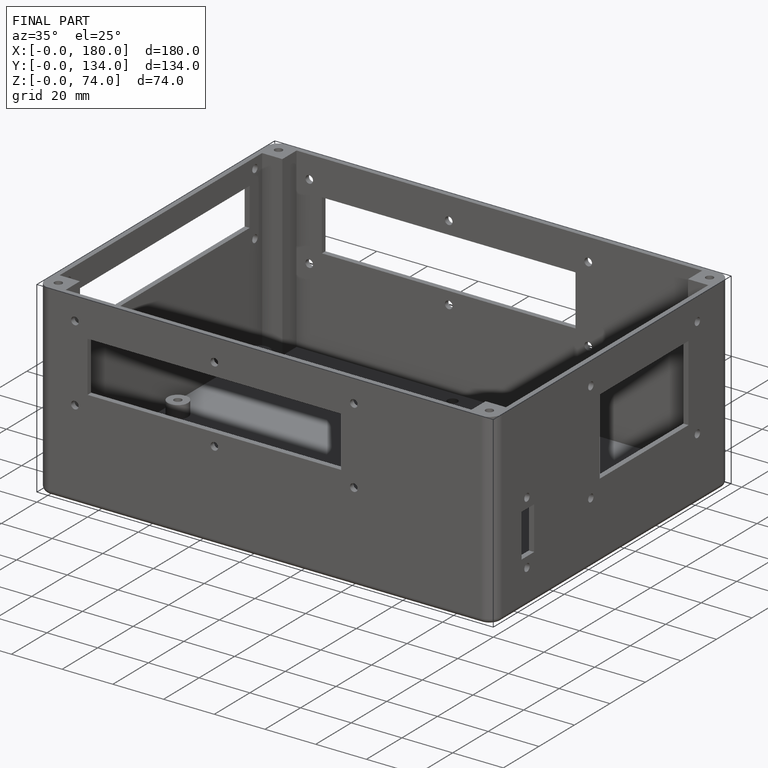
[diagram: finished part — iso view with bounding-box wireframe]
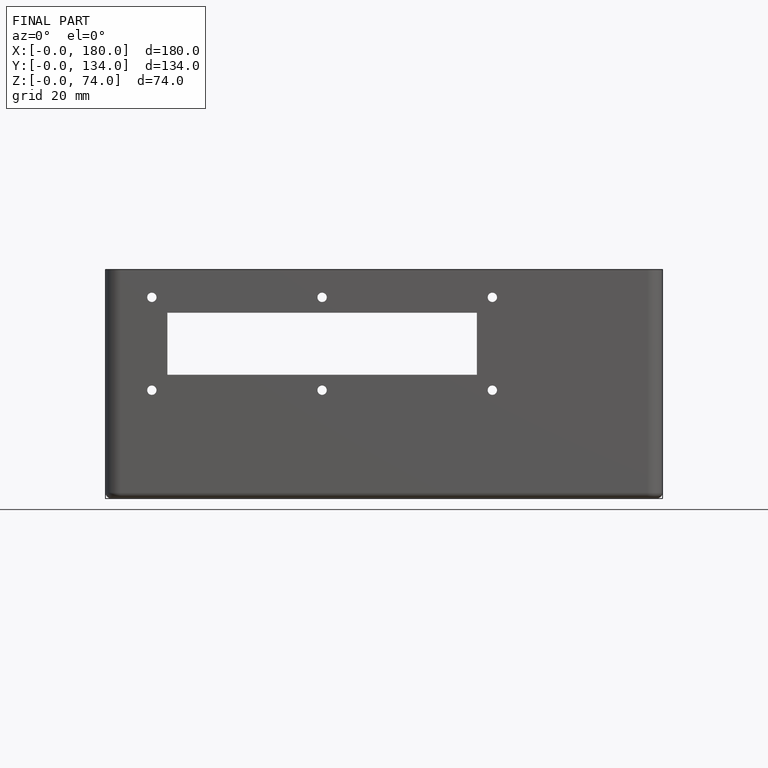
[diagram: finished part — front view with bounding-box wireframe]
